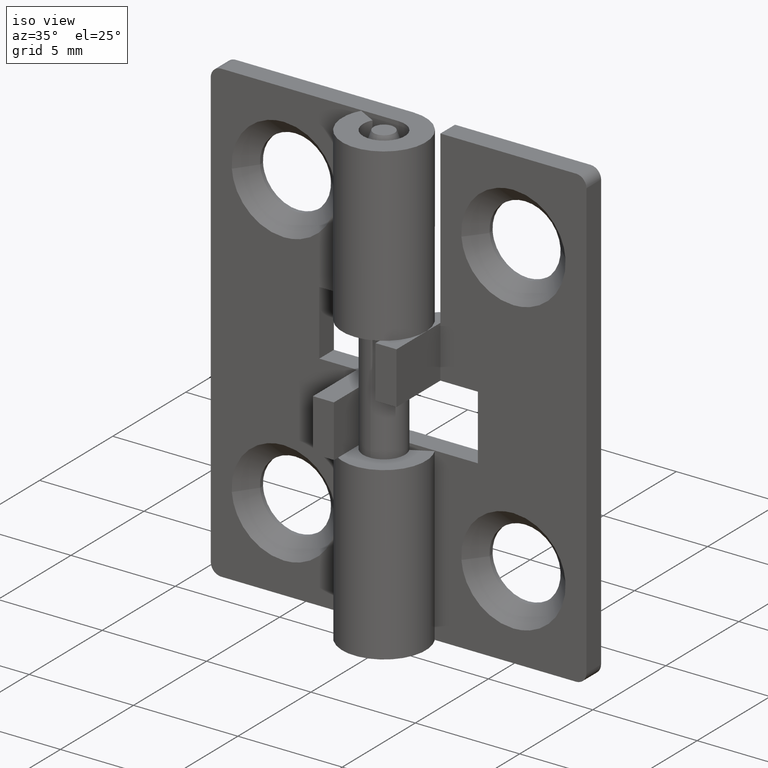
[diagram: clean part render]
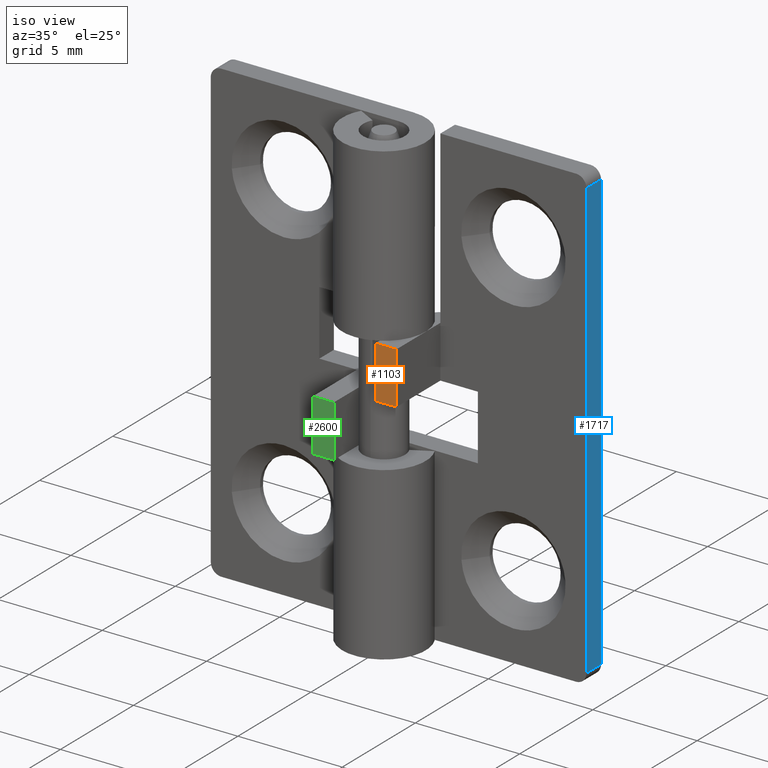
[diagram: same view with three faces highlighted in distinct colors, each labeled with its STEP entity id]
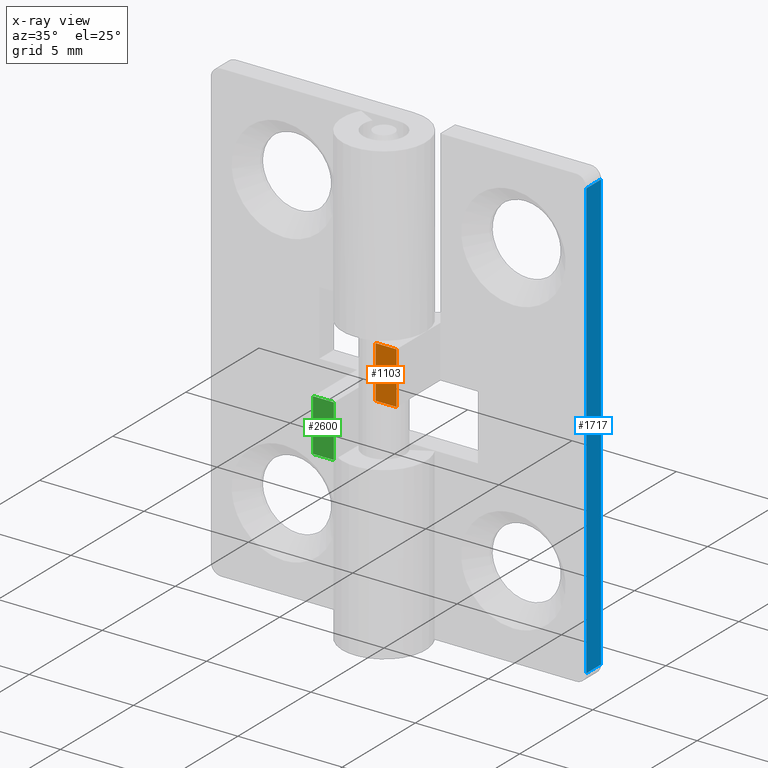
[diagram: x-ray of the same camera — body ghosted, the three highlighted faces saturated]
A machine part, iso view with three faces highlighted in distinct colors.
The next image is the same camera in x-ray (body ghosted, the three faces saturated) — at least one of them is partly hidden behind the body in this view.
Their STEP definitions:

[orange] entity #1103 — the highlighted face is a freeform B-spline surface patch.
#1068=CARTESIAN_POINT('',(0.950050001938194,-2.0,11.175120004845381));
#1069=CARTESIAN_POINT('',(2.049950024883896,-2.0,11.175120004845381));
#1070=CARTESIAN_POINT('',(0.950050001938194,-2.0,13.924870062209751));
#1071=CARTESIAN_POINT('',(2.049950024883896,-2.0,13.924870062209751));
#1072=B_SPLINE_SURFACE_WITH_KNOTS('',1,1,((#1068,#1070),(#1069,#1071)),.UNSPECIFIED.,.F.,.F.,.U.,(2,2),(2,2),(0.041708334948495,0.958291687403247),(0.0,2.749750057364370),.UNSPECIFIED.);
#1073=CARTESIAN_POINT('',(2.0,-2.0,11.299994999999900));
#1074=VERTEX_POINT('',#1073);
#1075=CARTESIAN_POINT('',(2.0,-2.0,13.799994999999999));
#1076=VERTEX_POINT('',#1075);
#1077=CARTESIAN_POINT('',(2.0,-2.0,11.299994999999900));
#1078=CARTESIAN_POINT('',(2.0,-2.0,13.799994999999999));
#1079=QUASI_UNIFORM_CURVE('',1,(#1077,#1078),.UNSPECIFIED.,.F.,.U.);
#1080=EDGE_CURVE('',#1074,#1076,#1079,.T.);
#1081=ORIENTED_EDGE('',*,*,#1080,.T.);
#1082=CARTESIAN_POINT('',(1.0,-2.0,13.799994999999999));
#1083=VERTEX_POINT('',#1082);
#1084=CARTESIAN_POINT('',(2.0,-2.0,13.799994999999999));
#1085=CARTESIAN_POINT('',(1.0,-2.0,13.799994999999999));
#1086=QUASI_UNIFORM_CURVE('',1,(#1084,#1085),.UNSPECIFIED.,.F.,.U.);
#1087=EDGE_CURVE('',#1076,#1083,#1086,.T.);
#1088=ORIENTED_EDGE('',*,*,#1087,.T.);
#1089=CARTESIAN_POINT('',(1.0,-2.0,11.299994999999900));
#1090=VERTEX_POINT('',#1089);
#1091=CARTESIAN_POINT('',(1.0,-2.0,13.799994999999999));
#1092=CARTESIAN_POINT('',(1.0,-2.0,11.299994999999900));
#1093=QUASI_UNIFORM_CURVE('',1,(#1091,#1092),.UNSPECIFIED.,.F.,.U.);
#1094=EDGE_CURVE('',#1083,#1090,#1093,.T.);
#1095=ORIENTED_EDGE('',*,*,#1094,.T.);
#1096=CARTESIAN_POINT('',(1.0,-2.0,11.299994999999900));
#1097=CARTESIAN_POINT('',(2.0,-2.0,11.299994999999900));
#1098=QUASI_UNIFORM_CURVE('',1,(#1096,#1097),.UNSPECIFIED.,.F.,.U.);
#1099=EDGE_CURVE('',#1090,#1074,#1098,.T.);
#1100=ORIENTED_EDGE('',*,*,#1099,.T.);
#1101=EDGE_LOOP('',(#1081,#1088,#1095,#1100));
#1102=FACE_OUTER_BOUND('',#1101,.T.);
#1103=ADVANCED_FACE('',(#1102),#1072,.T.);

[blue] entity #1717 — the highlighted face is a freeform B-spline surface patch.
#1344=CARTESIAN_POINT('',(9.0,2.0,21.500000000000000));
#1345=VERTEX_POINT('',#1344);
#1366=CARTESIAN_POINT('',(9.0,1.0,21.500000000000000));
#1367=VERTEX_POINT('',#1366);
#1381=CARTESIAN_POINT('',(9.0,2.0,21.500000000000000));
#1382=CARTESIAN_POINT('',(9.0,1.0,21.500000000000000));
#1383=QUASI_UNIFORM_CURVE('',1,(#1381,#1382),.UNSPECIFIED.,.F.,.U.);
#1384=EDGE_CURVE('',#1345,#1367,#1383,.T.);
#1403=CARTESIAN_POINT('',(9.0,2.0,0.499999999999945));
#1404=VERTEX_POINT('',#1403);
#1420=CARTESIAN_POINT('',(9.0,1.0,0.499999999999945));
#1421=VERTEX_POINT('',#1420);
#1422=CARTESIAN_POINT('',(9.0,1.0,0.499999999999945));
#1423=CARTESIAN_POINT('',(9.0,2.0,0.499999999999945));
#1424=QUASI_UNIFORM_CURVE('',1,(#1422,#1423),.UNSPECIFIED.,.F.,.U.);
#1425=EDGE_CURVE('',#1421,#1404,#1424,.T.);
#1673=CARTESIAN_POINT('',(9.0,1.0,0.499999999999945));
#1674=CARTESIAN_POINT('',(9.0,1.0,21.500000000000000));
#1675=QUASI_UNIFORM_CURVE('',1,(#1673,#1674),.UNSPECIFIED.,.F.,.U.);
#1676=EDGE_CURVE('',#1421,#1367,#1675,.T.);
#1702=CARTESIAN_POINT('',(9.0,0.950050001938194,-0.548949959297983));
#1703=CARTESIAN_POINT('',(9.0,0.950050001938194,22.548950522561821));
#1704=CARTESIAN_POINT('',(9.0,2.049950024883896,-0.548949959297983));
#1705=CARTESIAN_POINT('',(9.0,2.049950024883896,22.548950522561821));
#1706=B_SPLINE_SURFACE_WITH_KNOTS('',1,1,((#1702,#1704),(#1703,#1705)),.UNSPECIFIED.,.F.,.F.,.U.,(2,2),(2,2),(0.0,23.097900481859799),(0.041708334948495,0.958291687403247),.UNSPECIFIED.);
#1707=ORIENTED_EDGE('',*,*,#1676,.F.);
#1708=ORIENTED_EDGE('',*,*,#1425,.T.);
#1709=CARTESIAN_POINT('',(9.0,2.0,0.499999999999945));
#1710=CARTESIAN_POINT('',(9.0,2.0,21.500000000000000));
#1711=QUASI_UNIFORM_CURVE('',1,(#1709,#1710),.UNSPECIFIED.,.F.,.U.);
#1712=EDGE_CURVE('',#1404,#1345,#1711,.T.);
#1713=ORIENTED_EDGE('',*,*,#1712,.T.);
#1714=ORIENTED_EDGE('',*,*,#1384,.T.);
#1715=EDGE_LOOP('',(#1707,#1708,#1713,#1714));
#1716=FACE_OUTER_BOUND('',#1715,.T.);
#1717=ADVANCED_FACE('',(#1716),#1706,.F.);

[green] entity #2600 — the highlighted face is a freeform B-spline surface patch.
#2565=CARTESIAN_POINT('',(-2.049949998061806,-2.0,8.075122004845381));
#2566=CARTESIAN_POINT('',(-0.950049975116104,-2.0,8.075122004845381));
#2567=CARTESIAN_POINT('',(-2.049949998061806,-2.0,10.824872062209749));
#2568=CARTESIAN_POINT('',(-0.950049975116104,-2.0,10.824872062209749));
#2569=B_SPLINE_SURFACE_WITH_KNOTS('',1,1,((#2565,#2567),(#2566,#2568)),.UNSPECIFIED.,.F.,.F.,.U.,(2,2),(2,2),(0.041708334948495,0.958291687403247),(0.0,2.749750057364366),.UNSPECIFIED.);
#2570=CARTESIAN_POINT('',(-1.0,-2.0,8.199996999999900));
#2571=VERTEX_POINT('',#2570);
#2572=CARTESIAN_POINT('',(-1.0,-2.0,10.699997000000000));
#2573=VERTEX_POINT('',#2572);
#2574=CARTESIAN_POINT('',(-1.0,-2.0,8.199996999999900));
#2575=CARTESIAN_POINT('',(-1.0,-2.0,10.699997000000000));
#2576=QUASI_UNIFORM_CURVE('',1,(#2574,#2575),.UNSPECIFIED.,.F.,.U.);
#2577=EDGE_CURVE('',#2571,#2573,#2576,.T.);
#2578=ORIENTED_EDGE('',*,*,#2577,.T.);
#2579=CARTESIAN_POINT('',(-2.0,-2.0,10.699997000000000));
#2580=VERTEX_POINT('',#2579);
#2581=CARTESIAN_POINT('',(-1.0,-2.0,10.699997000000000));
#2582=CARTESIAN_POINT('',(-2.0,-2.0,10.699997000000000));
#2583=QUASI_UNIFORM_CURVE('',1,(#2581,#2582),.UNSPECIFIED.,.F.,.U.);
#2584=EDGE_CURVE('',#2573,#2580,#2583,.T.);
#2585=ORIENTED_EDGE('',*,*,#2584,.T.);
#2586=CARTESIAN_POINT('',(-2.0,-2.0,8.199996999999900));
#2587=VERTEX_POINT('',#2586);
#2588=CARTESIAN_POINT('',(-2.0,-2.0,10.699997000000000));
#2589=CARTESIAN_POINT('',(-2.0,-2.0,8.199996999999900));
#2590=QUASI_UNIFORM_CURVE('',1,(#2588,#2589),.UNSPECIFIED.,.F.,.U.);
#2591=EDGE_CURVE('',#2580,#2587,#2590,.T.);
#2592=ORIENTED_EDGE('',*,*,#2591,.T.);
#2593=CARTESIAN_POINT('',(-2.0,-2.0,8.199996999999900));
#2594=CARTESIAN_POINT('',(-1.0,-2.0,8.199996999999900));
#2595=QUASI_UNIFORM_CURVE('',1,(#2593,#2594),.UNSPECIFIED.,.F.,.U.);
#2596=EDGE_CURVE('',#2587,#2571,#2595,.T.);
#2597=ORIENTED_EDGE('',*,*,#2596,.T.);
#2598=EDGE_LOOP('',(#2578,#2585,#2592,#2597));
#2599=FACE_OUTER_BOUND('',#2598,.T.);
#2600=ADVANCED_FACE('',(#2599),#2569,.T.);